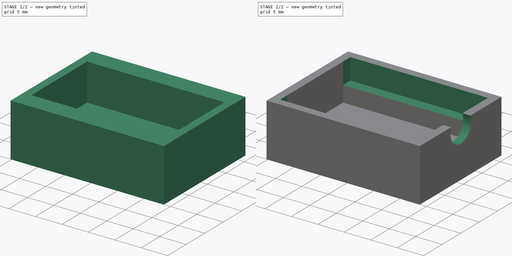
[diagram: build sequence overview — one tinted view per stage of 2, left to right]
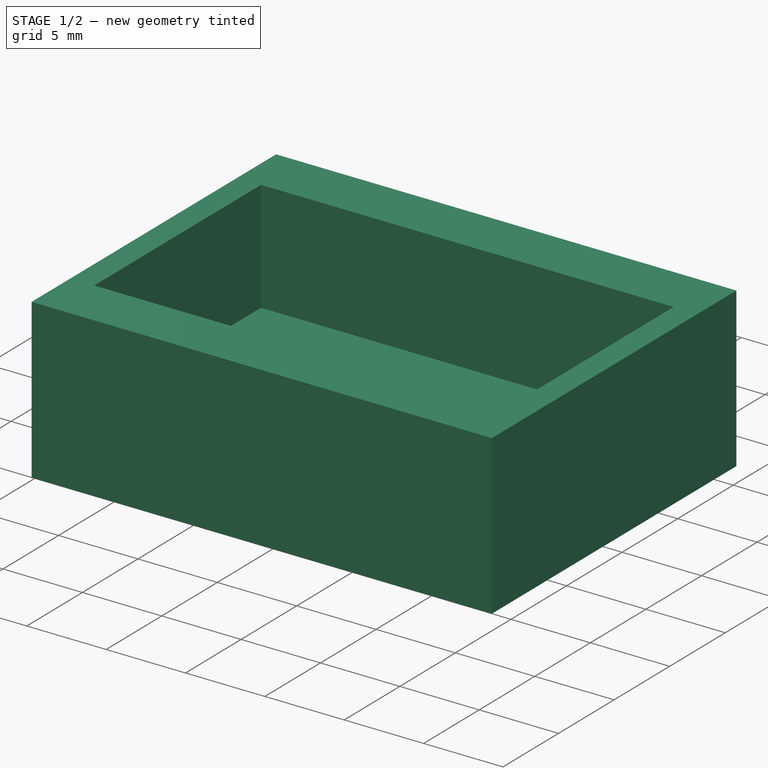
[diagram: stage 1 of 2 — iso view after this stage's code; geometry added in this stage tinted green]
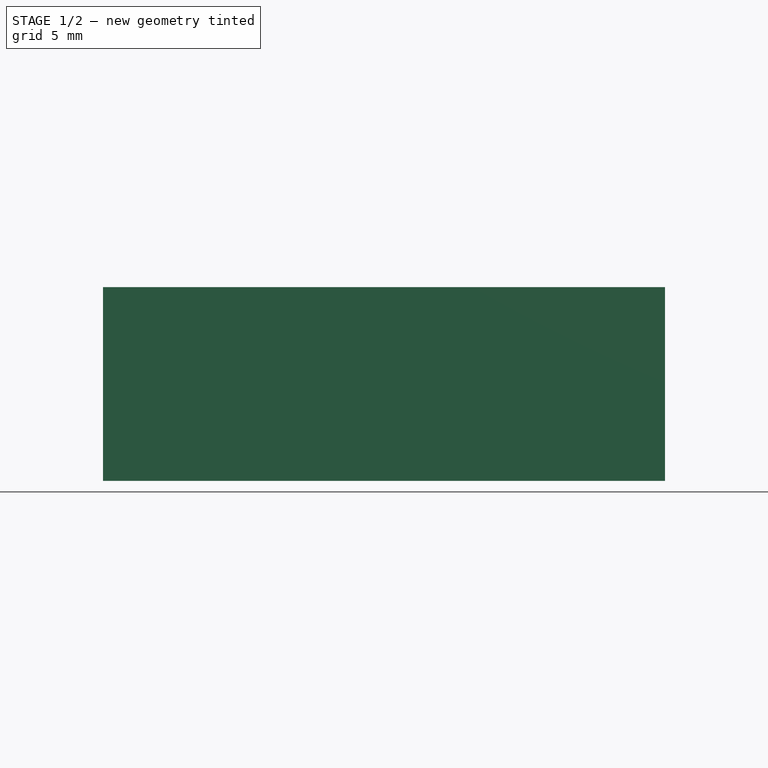
[diagram: stage 1 of 2 — front view after this stage's code; geometry added in this stage tinted green]
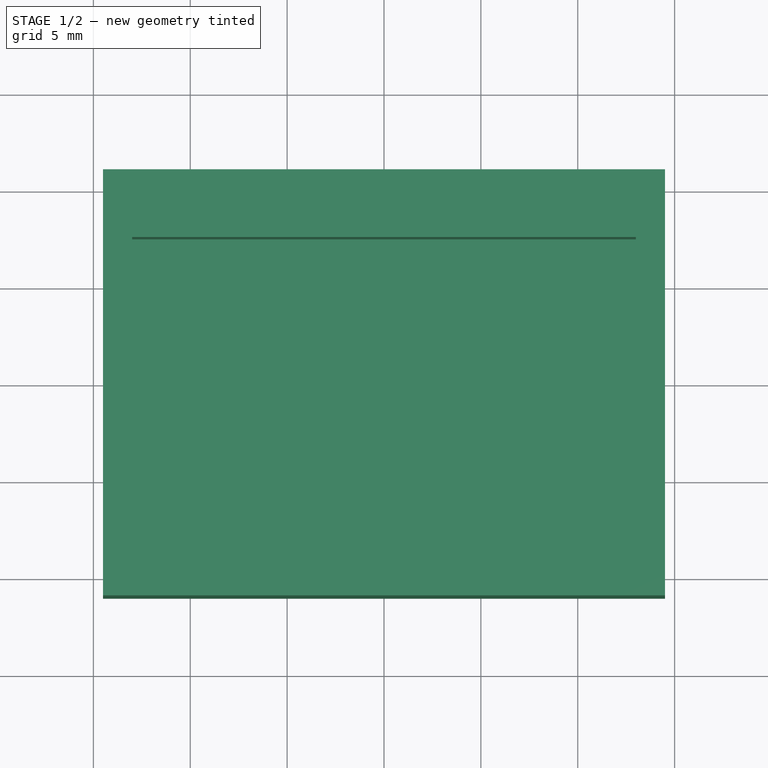
[diagram: stage 1 of 2 — top view after this stage's code; geometry added in this stage tinted green]
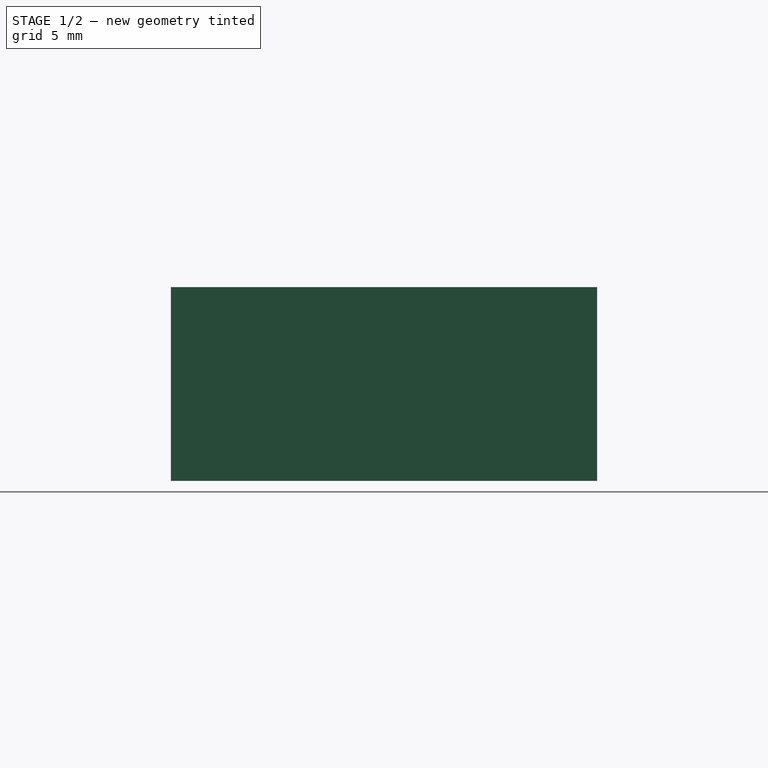
[diagram: stage 1 of 2 — right view after this stage's code; geometry added in this stage tinted green]
FCSTD DOCUMENT  (FreeCAD 0.16R6712 (Git))
Label: ttstrobe
License: All rights reserved
LicenseURL: http://en.wikipedia.org/wiki/All_rights_reserved
objects: Sketcher::SketchObject×4, PartDesign::Pocket×3, PartDesign::Pad×1
note: 12 computed .brp shape members not serialized (recipe doc carries the construction recipe); baked Part::Feature solids carry a one-line shape summary decoded from their .brp

FEATURE [Sketcher::SketchObject] Sketch
  sketch-geometry (6):
    g0: LineSegment StartX=-14.5 StartY=11 StartZ=0 EndX=14.5 EndY=11 EndZ=0
    g1: LineSegment StartX=14.5 StartY=11 StartZ=0 EndX=14.5 EndY=-11 EndZ=0
    g2: LineSegment StartX=14.5 StartY=-11 StartZ=0 EndX=-14.5 EndY=-11 EndZ=0
    g3: LineSegment StartX=-14.5 StartY=-11 StartZ=0 EndX=-14.5 EndY=11 EndZ=0
    g4: LineSegment [constr] StartX=-14.5 StartY=11 StartZ=0 EndX=14.5 EndY=-11 EndZ=0
    g5: LineSegment [constr] StartX=14.5 StartY=11 StartZ=0 EndX=-14.5 EndY=-11 EndZ=0
  constraints (16):
    c: Coincident(g0,g1)
    c: Coincident(g1,g2)
    c: Coincident(g2,g3)
    c: Coincident(g3,g0)
    c: Horizontal(g0)
    c: Horizontal(g2)
    c: Vertical(g1)
    c: Vertical(g3)
    c: Coincident(g4,g0)
    c: Coincident(g4,g1)
    c: Coincident(g5,g0)
    c: Coincident(g5,g2)
    c: PointOnObject(g-1,g5)
    c: PointOnObject(g-1,g4)
    c: DistanceX(g0,g0) = 29
    c: DistanceY(g1,g1) = 22
FEATURE [PartDesign::Pad] Pad
  Length = 10
  Length2 = 100
  Sketch = -> Sketch
  Type = 0
FEATURE [Sketcher::SketchObject] Sketch001
  ExternalGeometry = -> [Pad]
  Placement = pos=(0,0,10) rot=(0,0,1;0rad)
  Support = -> Pad [Face6]
  sketch-geometry (6):
    g0: LineSegment StartX=-13 StartY=7.5 StartZ=0 EndX=13 EndY=7.5 EndZ=0
    g1: LineSegment StartX=13 StartY=-7.5 StartZ=0 EndX=-13 EndY=-7.5 EndZ=0
    g2: LineSegment StartX=-13 StartY=-7.5 StartZ=0 EndX=-13 EndY=7.5 EndZ=0
    g3: LineSegment StartX=13 StartY=7.5 StartZ=0 EndX=13 EndY=-7.5 EndZ=0
    g4: LineSegment [constr] StartX=-13 StartY=7.5 StartZ=0 EndX=13 EndY=-7.5 EndZ=0
    g5: LineSegment [constr] StartX=13 StartY=7.5 StartZ=0 EndX=-13 EndY=-7.5 EndZ=0
  constraints (16):
    c: Coincident(g1,g2)
    c: Coincident(g2,g0)
    c: Horizontal(g0)
    c: Horizontal(g1)
    c: Vertical(g2)
    c: Coincident(g3,g0)
    c: Coincident(g3,g1)
    c: Vertical(g3)
    c: DistanceY(g3,g3) = 15
    c: DistanceX(g0,g0) = 26
    c: Coincident(g0,g4)
    c: PointOnObject(g-1,g5)
    c: PointOnObject(g-1,g4)
    c: Coincident(g4,g1)
    c: Coincident(g5,g0)
    c: Coincident(g5,g1)
FEATURE [PartDesign::Pocket] Pocket
  Length = 7
  Sketch = -> Sketch001
  Type = 0
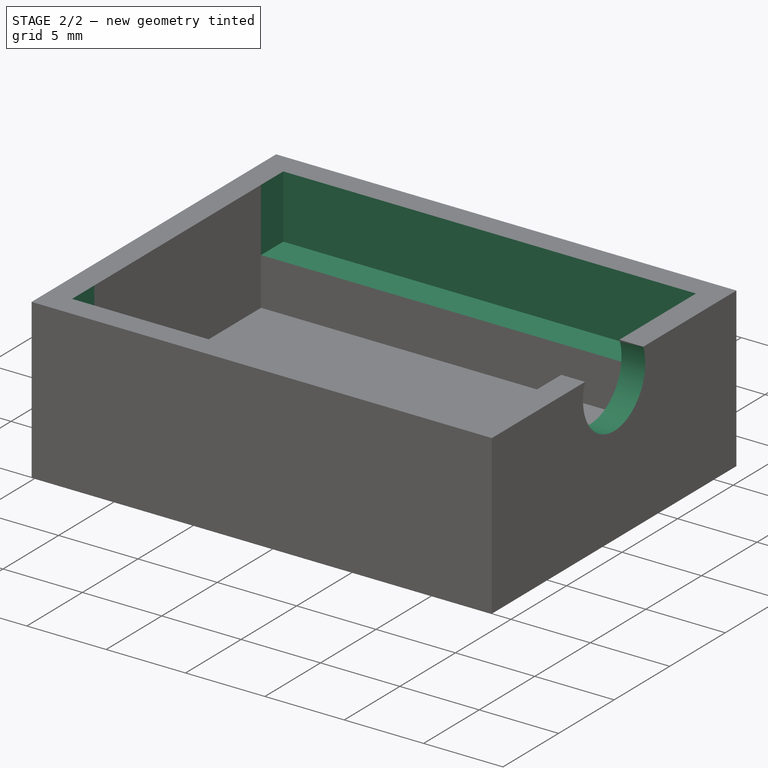
[diagram: stage 2 of 2 — iso view after this stage's code; geometry added in this stage tinted green]
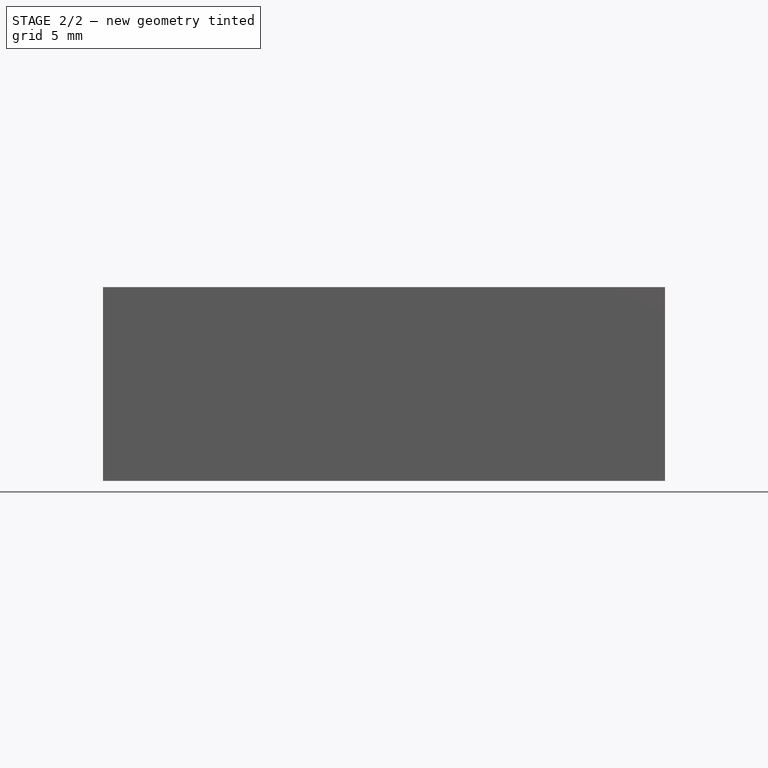
[diagram: stage 2 of 2 — front view after this stage's code; geometry added in this stage tinted green]
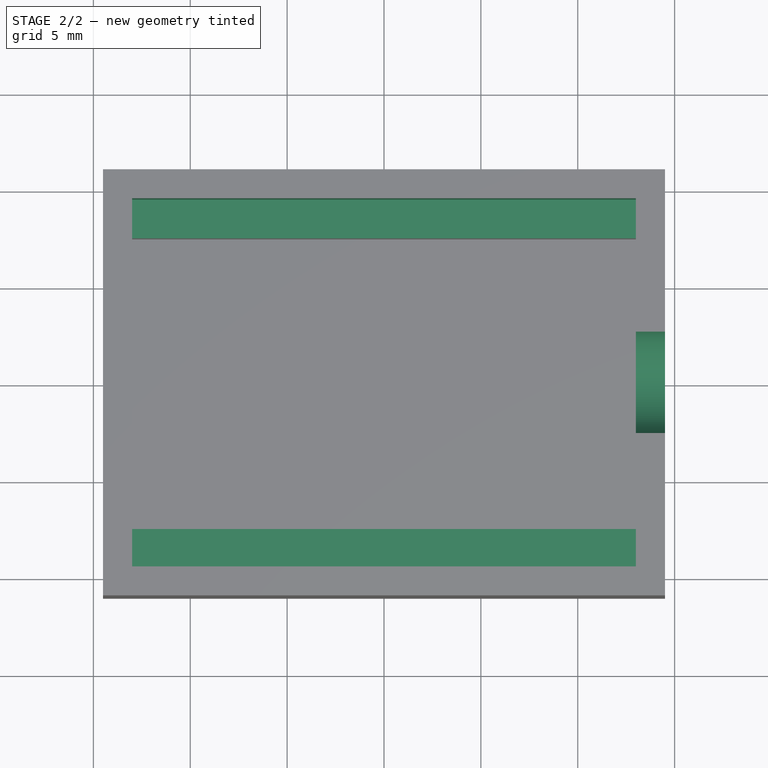
[diagram: stage 2 of 2 — top view after this stage's code; geometry added in this stage tinted green]
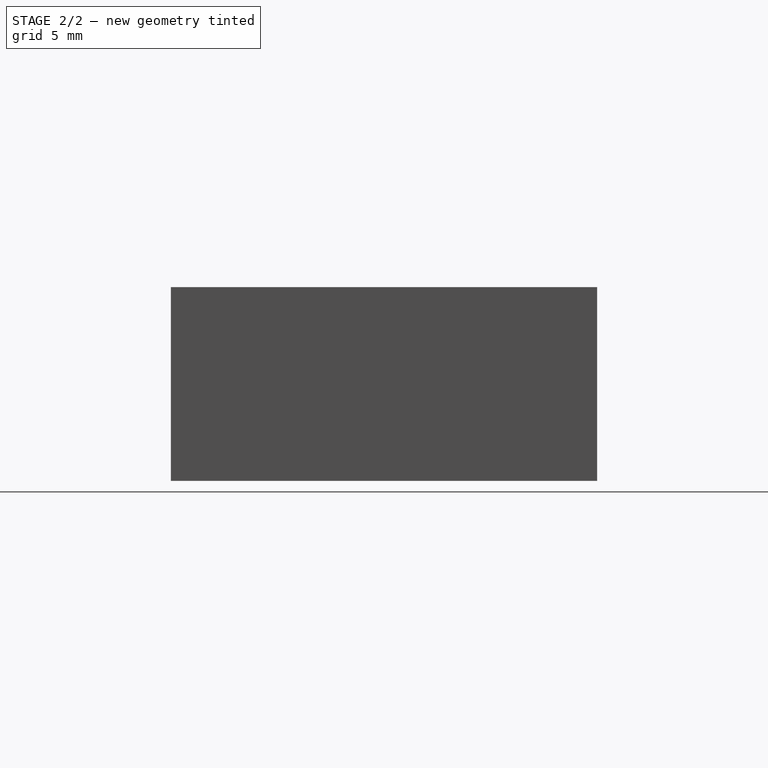
[diagram: stage 2 of 2 — right view after this stage's code; geometry added in this stage tinted green]
FEATURE [Sketcher::SketchObject] Sketch002
  Placement = pos=(0,0,10) rot=(0,0,1;0rad)
  Support = -> Pocket [Face5]
  sketch-geometry (6):
    g0: LineSegment StartX=-13 StartY=9.5 StartZ=0 EndX=13 EndY=9.5 EndZ=0
    g1: LineSegment StartX=13 StartY=9.5 StartZ=0 EndX=13 EndY=-9.5 EndZ=0
    g2: LineSegment StartX=13 StartY=-9.5 StartZ=0 EndX=-13 EndY=-9.5 EndZ=0
    g3: LineSegment StartX=-13 StartY=-9.5 StartZ=0 EndX=-13 EndY=9.5 EndZ=0
    g4: LineSegment [constr] StartX=-13 StartY=9.5 StartZ=0 EndX=13 EndY=-9.5 EndZ=0
    g5: LineSegment [constr] StartX=13 StartY=9.5 StartZ=0 EndX=-13 EndY=-9.5 EndZ=0
  constraints (16):
    c: Coincident(g0,g1)
    c: Coincident(g1,g2)
    c: Coincident(g2,g3)
    c: Coincident(g3,g0)
    c: Horizontal(g0)
    c: Horizontal(g2)
    c: Vertical(g1)
    c: Vertical(g3)
    c: DistanceY(g3,g3) = 19
    c: Coincident(g4,g0)
    c: Coincident(g4,g1)
    c: Coincident(g5,g0)
    c: Coincident(g5,g2)
    c: PointOnObject(g-1,g5)
    c: PointOnObject(g-1,g4)
    c: DistanceX(g0,g0) = 26
FEATURE [PartDesign::Pocket] Pocket001
  Length = 4
  Sketch = -> Sketch002
  Type = 0
FEATURE [Sketcher::SketchObject] Sketch003
  ExternalGeometry = -> [Pocket001]
  Placement = pos=(14.5,0,0) rot=(0.57735,0.57735,0.57735;2.0944rad)
  Support = -> Pocket001 [Face3]
  sketch-geometry (3):
    g0: ArcOfCircle CenterX=0 CenterY=9 CenterZ=0 NormalX=0 NormalY=0 NormalZ=1 Radius=2.8 StartAngle=2.77639 EndAngle=6.64839
    g1: LineSegment StartX=-2.61534 StartY=10 StartZ=0 EndX=2.61534 EndY=10 EndZ=0
    g2: LineSegment [constr] StartX=0 StartY=9 StartZ=0 EndX=0 EndY=6 EndZ=0
  constraints (10):
    c: PointOnObject(g0,g-4)
    c: PointOnObject(g0,g-4)
    c: Radius(g0) = 2.8
    c: Coincident(g1,g0)
    c: Coincident(g1,g0)
    c: Coincident(g2,g0)
    c: PointOnObject(g2,g-3)
    c: Vertical(g2)
    c: DistanceY(g2,g2) = 3
    c: Symmetric(g-3,g-3,g2)
FEATURE [PartDesign::Pocket] Pocket002
  Length = 5
  Sketch = -> Sketch003
  Type = 2
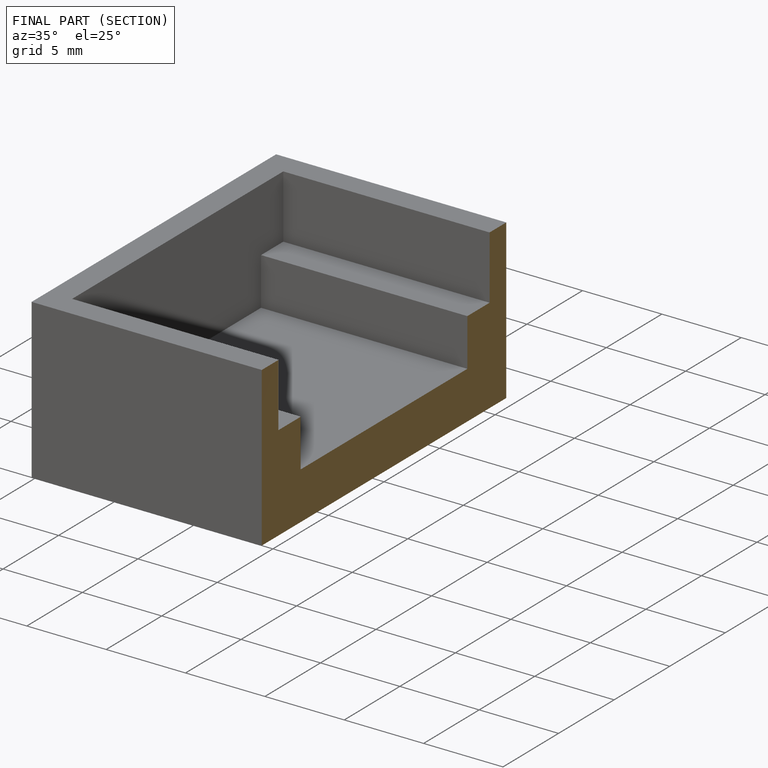
[diagram: finished part — half-section view (interior)]
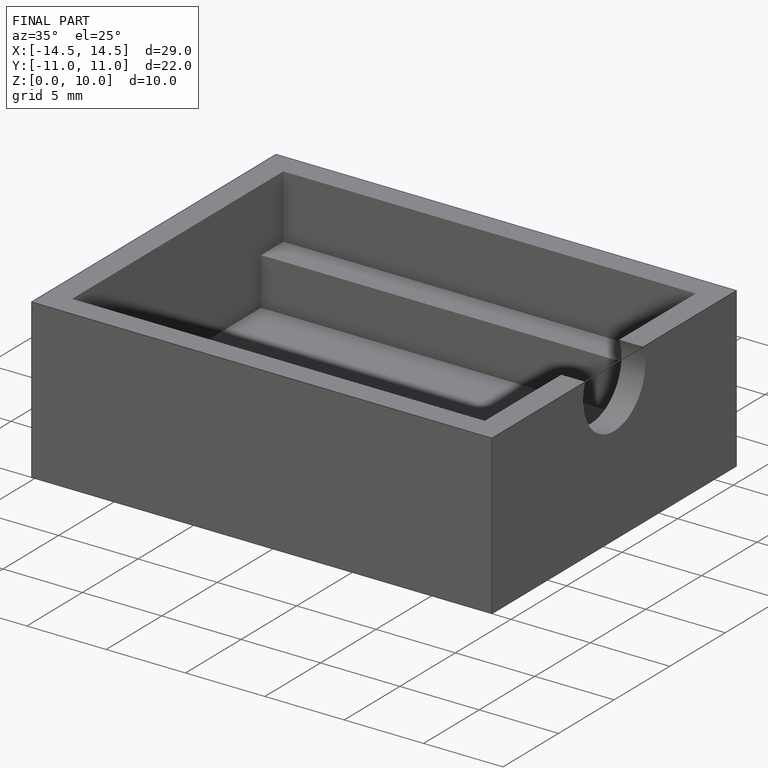
[diagram: finished part — iso view with bounding-box wireframe]
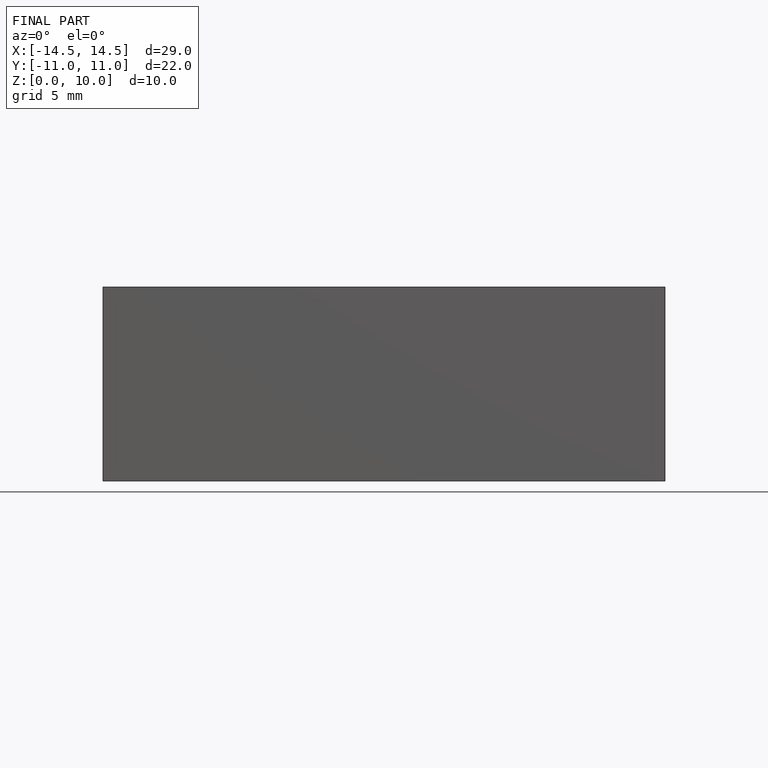
[diagram: finished part — front view with bounding-box wireframe]
